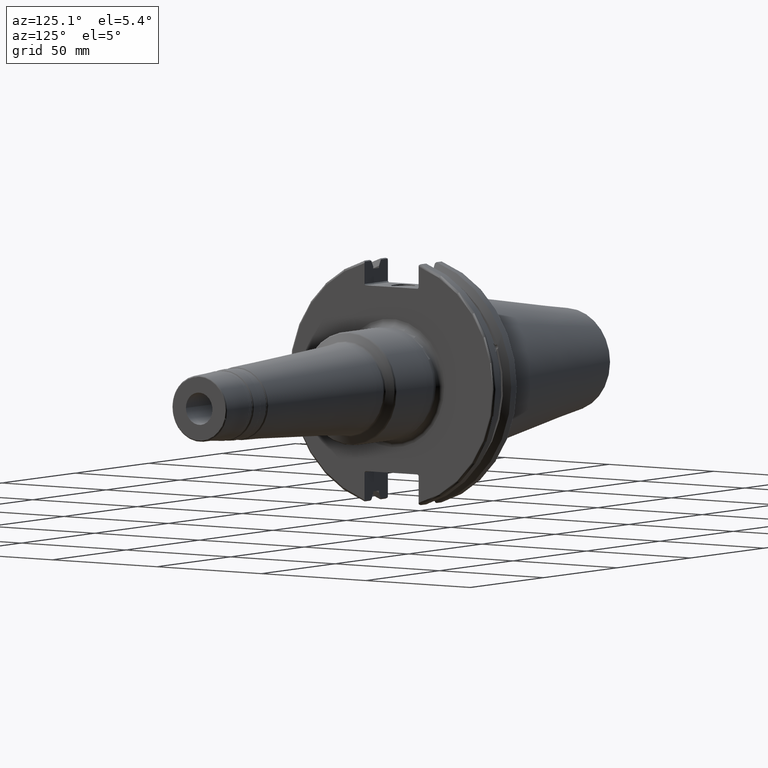
[diagram: clean part render]
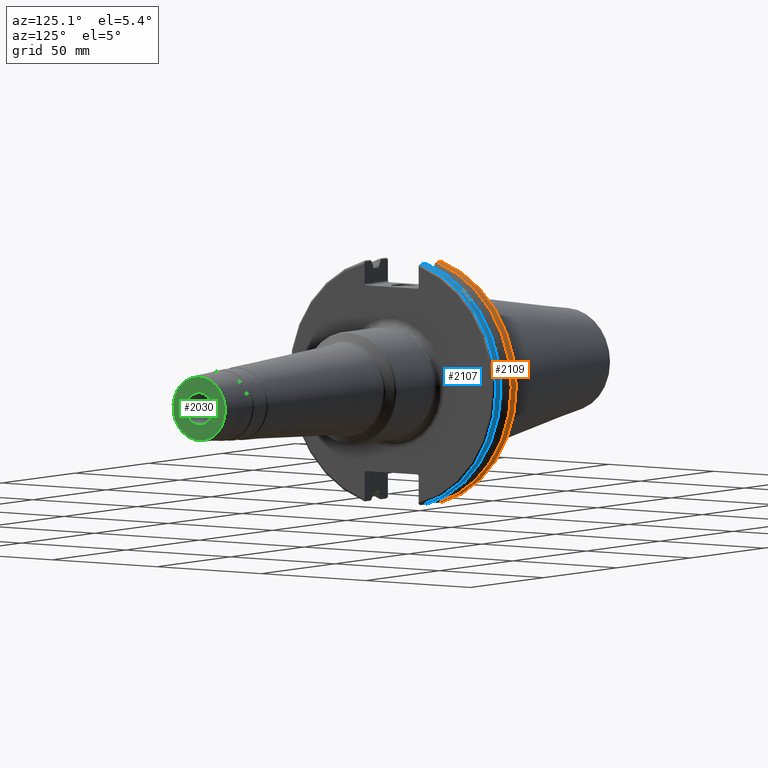
[diagram: same view with three faces highlighted in distinct colors, each labeled with its STEP entity id]
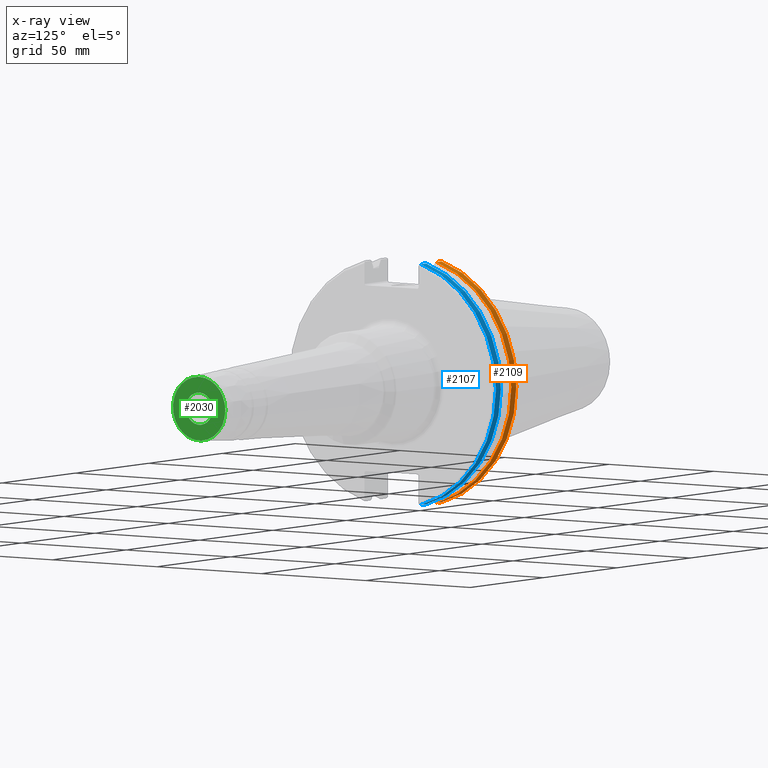
[diagram: x-ray of the same camera — body ghosted, the three highlighted faces saturated]
A machine part, auxiliary view with three faces highlighted in distinct colors.
The next image is the same camera in x-ray (body ghosted, the three faces saturated) — at least one of them is partly hidden behind the body in this view.
Their STEP definitions:

[orange] entity #2109 — the highlighted cylindrical surface (partial cylindrical patch) has radius 49.2125 mm, axis along (1, 0, 0).
#230=LINE('',#4119,#331);
#245=LINE('',#4180,#346);
#331=VECTOR('',#2949,10.);
#346=VECTOR('',#3016,10.);
#374=CYLINDRICAL_SURFACE('',#2393,49.2125);
#467=FACE_OUTER_BOUND('',#589,.T.);
#589=EDGE_LOOP('',(#1921,#1922,#1923,#1924));
#722=CIRCLE('',#2308,49.2125);
#753=CIRCLE('',#2365,49.2125);
#928=VERTEX_POINT('',#3820);
#929=VERTEX_POINT('',#3824);
#991=VERTEX_POINT('',#4093);
#992=VERTEX_POINT('',#4102);
#1204=EDGE_CURVE('',#928,#929,#722,.T.);
#1294=EDGE_CURVE('',#991,#992,#753,.T.);
#1297=EDGE_CURVE('',#992,#928,#230,.T.);
#1325=EDGE_CURVE('',#929,#991,#245,.T.);
#1921=ORIENTED_EDGE('',*,*,#1294,.F.);
#1922=ORIENTED_EDGE('',*,*,#1325,.F.);
#1923=ORIENTED_EDGE('',*,*,#1204,.F.);
#1924=ORIENTED_EDGE('',*,*,#1297,.F.);
#2109=ADVANCED_FACE('',(#467),#374,.T.);
#2308=AXIS2_PLACEMENT_3D('',#3825,#2795,#2796);
#2365=AXIS2_PLACEMENT_3D('',#4103,#2945,#2946);
#2393=AXIS2_PLACEMENT_3D('',#4181,#3017,#3018);
#2795=DIRECTION('center_axis',(1.,0.,0.));
#2796=DIRECTION('ref_axis',(0.,0.,-1.));
#2945=DIRECTION('center_axis',(-1.,0.,0.));
#2946=DIRECTION('ref_axis',(0.,1.,-6.12323399573677E-17));
#2949=DIRECTION('',(1.,0.,0.));
#3016=DIRECTION('',(-1.,0.,0.));
#3017=DIRECTION('center_axis',(1.,0.,0.));
#3018=DIRECTION('ref_axis',(0.,1.,0.));
#3820=CARTESIAN_POINT('',(7.60799096595127,13.4317035994433,-47.3440544806494));
#3824=CARTESIAN_POINT('',(7.60799096595127,13.4317035994433,47.3440544806494));
#3825=CARTESIAN_POINT('Origin',(7.60799096595127,0.,0.));
#4093=CARTESIAN_POINT('',(4.175,13.4317035994433,47.3440544806494));
#4102=CARTESIAN_POINT('',(4.175,13.4317035994433,-47.3440544806494));
#4103=CARTESIAN_POINT('Origin',(4.175,0.,0.));
#4119=CARTESIAN_POINT('',(5.39149548297563,13.4317035994433,-47.3440544806494));
#4180=CARTESIAN_POINT('',(5.39149548297563,13.4317035994433,47.3440544806494));
#4181=CARTESIAN_POINT('Origin',(5.39149548297563,0.,0.));

[blue] entity #2107 — the highlighted cylindrical surface (partial cylindrical patch) has radius 49.2125 mm, axis along (1, 0, 0).
#216=LINE('',#3973,#317);
#244=LINE('',#4173,#345);
#317=VECTOR('',#2907,10.);
#345=VECTOR('',#3009,10.);
#373=CYLINDRICAL_SURFACE('',#2390,49.2125);
#465=FACE_OUTER_BOUND('',#587,.T.);
#587=EDGE_LOOP('',(#1913,#1914,#1915,#1916));
#749=CIRCLE('',#2351,49.2125);
#764=CIRCLE('',#2391,49.2125);
#970=VERTEX_POINT('',#3947);
#971=VERTEX_POINT('',#3956);
#973=VERTEX_POINT('',#3969);
#1006=VERTEX_POINT('',#4172);
#1258=EDGE_CURVE('',#970,#971,#749,.T.);
#1262=EDGE_CURVE('',#973,#970,#216,.T.);
#1322=EDGE_CURVE('',#971,#1006,#244,.T.);
#1324=EDGE_CURVE('',#973,#1006,#764,.T.);
#1913=ORIENTED_EDGE('',*,*,#1258,.F.);
#1914=ORIENTED_EDGE('',*,*,#1262,.F.);
#1915=ORIENTED_EDGE('',*,*,#1324,.T.);
#1916=ORIENTED_EDGE('',*,*,#1322,.F.);
#2107=ADVANCED_FACE('',(#465),#373,.T.);
#2351=AXIS2_PLACEMENT_3D('',#3957,#2902,#2903);
#2390=AXIS2_PLACEMENT_3D('',#4177,#3010,#3011);
#2391=AXIS2_PLACEMENT_3D('',#4178,#3012,#3013);
#2902=DIRECTION('center_axis',(1.,0.,0.));
#2903=DIRECTION('ref_axis',(0.,1.,-6.12323399573677E-17));
#2907=DIRECTION('',(1.,0.,0.));
#3009=DIRECTION('',(-1.,0.,0.));
#3010=DIRECTION('center_axis',(1.,0.,0.));
#3011=DIRECTION('ref_axis',(0.,1.,0.));
#3012=DIRECTION('center_axis',(1.,0.,0.));
#3013=DIRECTION('ref_axis',(0.,0.,-1.));
#3947=CARTESIAN_POINT('',(18.05,13.4317035994433,-47.3440544806494));
#3956=CARTESIAN_POINT('',(18.05,13.4317035994433,47.3440544806494));
#3957=CARTESIAN_POINT('Origin',(18.05,0.,0.));
#3969=CARTESIAN_POINT('',(14.6602090340487,13.4317035994433,-47.3440544806494));
#3973=CARTESIAN_POINT('',(16.8551045170244,13.4317035994433,-47.3440544806494));
#4172=CARTESIAN_POINT('',(14.6602090340487,13.4317035994433,47.3440544806494));
#4173=CARTESIAN_POINT('',(16.8551045170244,13.4317035994433,47.3440544806494));
#4177=CARTESIAN_POINT('Origin',(16.8551045170244,0.,0.));
#4178=CARTESIAN_POINT('Origin',(14.6602090340487,0.,0.));

[green] entity #2030 — the highlighted planar face has unit normal (1, 0, 0).
#94=FACE_BOUND('',#494,.T.);
#114=PLANE('',#2188);
#388=FACE_OUTER_BOUND('',#493,.T.);
#493=EDGE_LOOP('',(#1421,#1422));
#494=EDGE_LOOP('',(#1423,#1424));
#632=CIRCLE('',#2178,12.5255177166426);
#637=CIRCLE('',#2183,12.5255177166426);
#641=CIRCLE('',#2189,6.34999999999997);
#642=CIRCLE('',#2190,6.34999999999997);
#811=VERTEX_POINT('',#3161);
#812=VERTEX_POINT('',#3162);
#819=VERTEX_POINT('',#3181);
#820=VERTEX_POINT('',#3182);
#1054=EDGE_CURVE('',#811,#812,#632,.T.);
#1059=EDGE_CURVE('',#812,#811,#637,.T.);
#1064=EDGE_CURVE('',#819,#820,#641,.T.);
#1065=EDGE_CURVE('',#820,#819,#642,.T.);
#1421=ORIENTED_EDGE('',*,*,#1054,.F.);
#1422=ORIENTED_EDGE('',*,*,#1059,.F.);
#1423=ORIENTED_EDGE('',*,*,#1064,.F.);
#1424=ORIENTED_EDGE('',*,*,#1065,.F.);
#2030=ADVANCED_FACE('',(#388,#94),#114,.T.);
#2178=AXIS2_PLACEMENT_3D('',#3163,#2504,#2505);
#2183=AXIS2_PLACEMENT_3D('',#3171,#2514,#2515);
#2188=AXIS2_PLACEMENT_3D('',#3180,#2525,#2526);
#2189=AXIS2_PLACEMENT_3D('',#3183,#2527,#2528);
#2190=AXIS2_PLACEMENT_3D('',#3184,#2529,#2530);
#2504=DIRECTION('center_axis',(-1.,0.,0.));
#2505=DIRECTION('ref_axis',(0.,-1.,1.83697019872103E-16));
#2514=DIRECTION('center_axis',(-1.,0.,0.));
#2515=DIRECTION('ref_axis',(0.,-1.,1.83697019872103E-16));
#2525=DIRECTION('center_axis',(1.,0.,0.));
#2526=DIRECTION('ref_axis',(0.,0.,-1.));
#2527=DIRECTION('center_axis',(1.,0.,0.));
#2528=DIRECTION('ref_axis',(0.,0.,-1.));
#2529=DIRECTION('center_axis',(1.,0.,0.));
#2530=DIRECTION('ref_axis',(0.,0.,-1.));
#3161=CARTESIAN_POINT('',(150.,12.5255177166426,-3.83483379483744E-15));
#3162=CARTESIAN_POINT('',(150.,-1.53393351793498E-15,12.5255177166426));
#3163=CARTESIAN_POINT('Origin',(150.,0.,0.));
#3171=CARTESIAN_POINT('Origin',(150.,0.,0.));
#3180=CARTESIAN_POINT('Origin',(150.,6.34999999999997,0.));
#3181=CARTESIAN_POINT('',(150.,6.34999999999997,0.));
#3182=CARTESIAN_POINT('',(150.,-6.34999999999996,-7.77650717458565E-16));
#3183=CARTESIAN_POINT('Origin',(150.,0.,0.));
#3184=CARTESIAN_POINT('Origin',(150.,0.,0.));